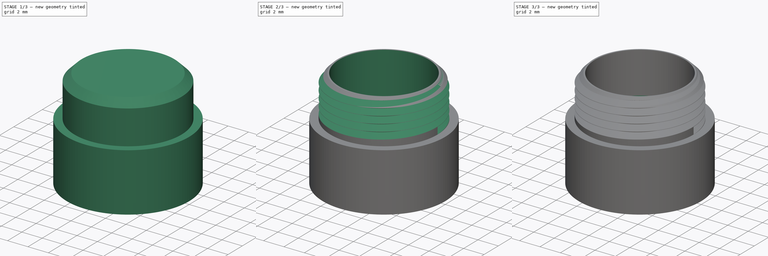
[diagram: build sequence overview — one tinted view per stage of 3, left to right]
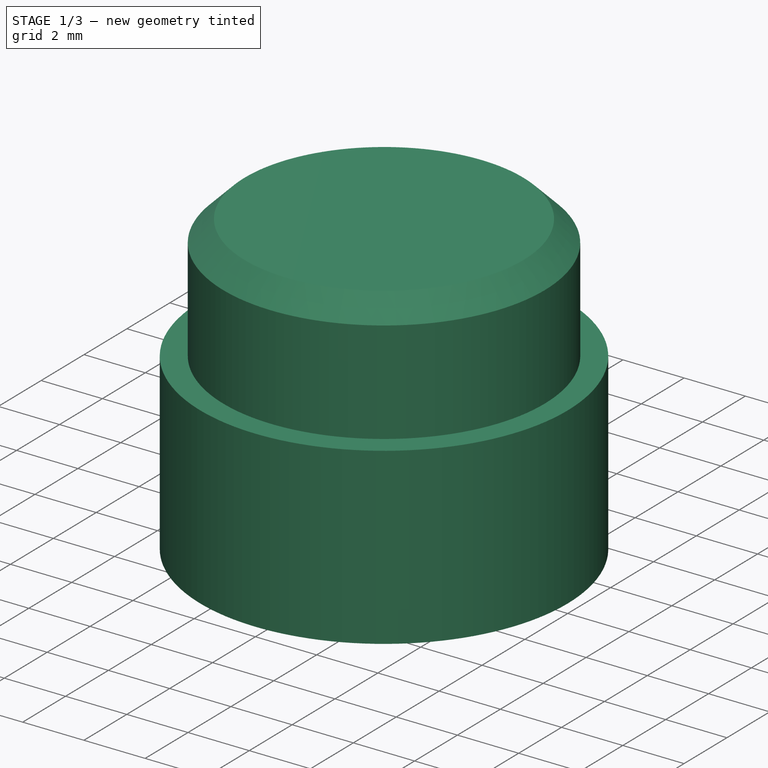
[diagram: stage 1 of 3 — iso view after this stage's code; geometry added in this stage tinted green]
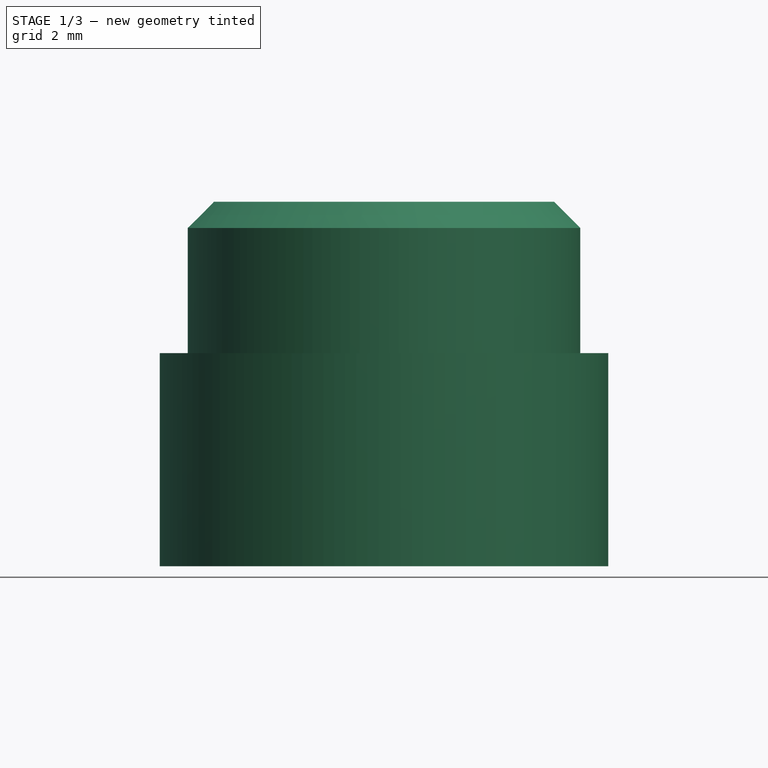
[diagram: stage 1 of 3 — front view after this stage's code; geometry added in this stage tinted green]
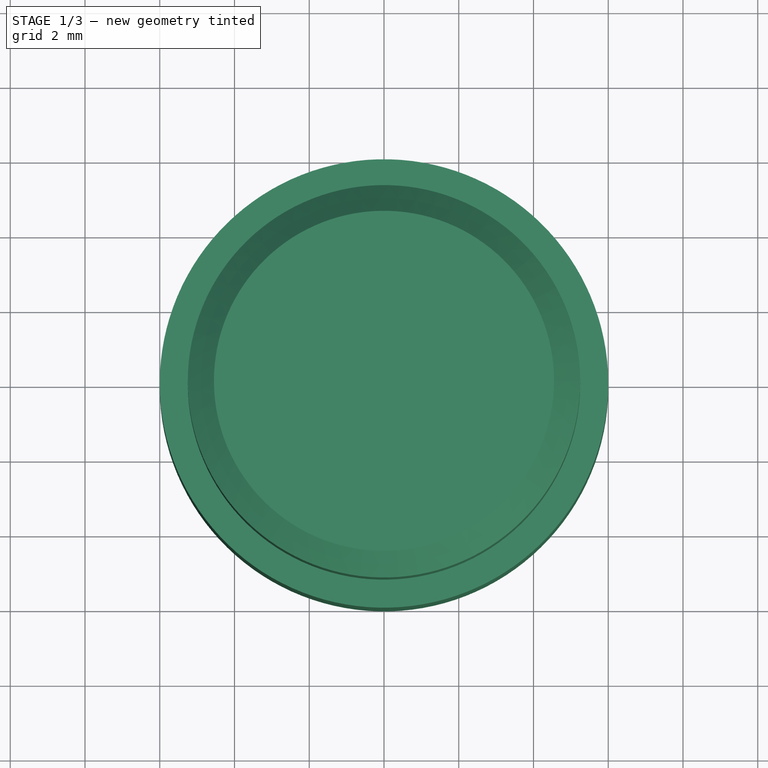
[diagram: stage 1 of 3 — top view after this stage's code; geometry added in this stage tinted green]
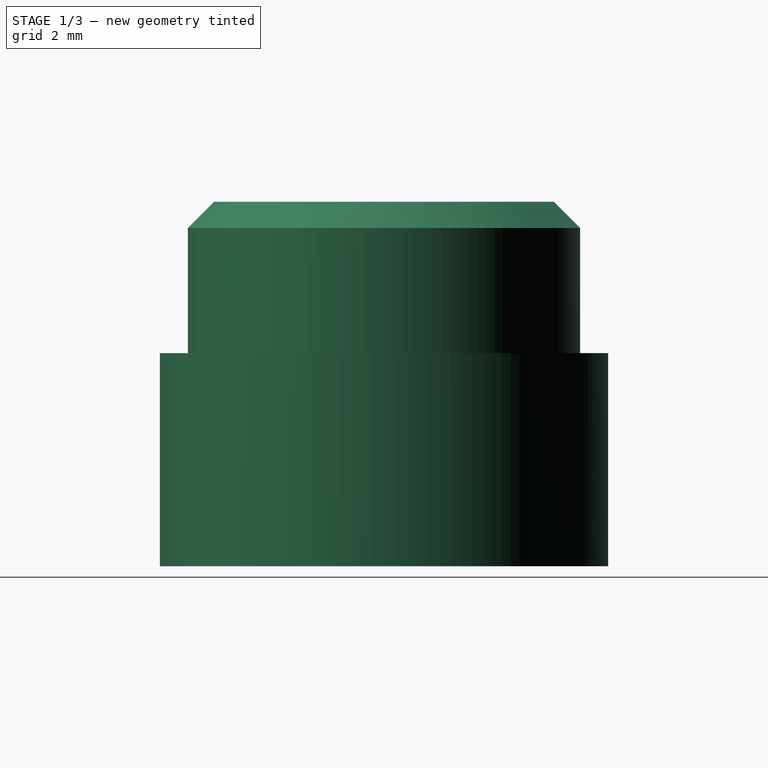
[diagram: stage 1 of 3 — right view after this stage's code; geometry added in this stage tinted green]
FCSTD DOCUMENT  (FreeCAD 0.20R29410 (Git))
Label: sleeve
License: All rights reserved
LicenseURL: http://en.wikipedia.org/wiki/All_rights_reserved
objects: Sketcher::SketchObject×6, PartDesign::Pad×2, PartDesign::Chamfer×2, PartDesign::SubtractiveHelix×2, PartDesign::Pocket×2, Spreadsheet::Sheet×1, PartDesign::Body×1, App::Part×1
note: 23 computed .brp shape members not serialized (recipe doc carries the construction recipe); baked Part::Feature solids carry a one-line shape summary decoded from their .brp

FEATURE [Sketcher::SketchObject] Sketch
  FullyConstrained = true
  MapMode = 5
  Support = -> [XY_Plane001]
  expr: Constraints[1] = Spreadsheet.sleeve_grip_od
  sketch-geometry (1):
    g0: Circle CenterX=0 CenterY=0 CenterZ=0 NormalX=0 NormalY=0 NormalZ=1 AngleXU=0 Radius=6
  constraints (2):
    c: Coincident(g0,g-1)
    c: Diameter(g0) = 12
FEATURE [Spreadsheet::Sheet] Spreadsheet  label="p"
  cells = C1=epsilon; A2=sleeve_height; B2(sleeve_height)=9.75; C2=0; A3=sleeve_grip_id; B3(sleeve_grip_id)==10.4 + C3; C3=-0.1; A4=sleeve_grip_od; B4(sleeve_grip_od)==11.5 + C4; C4=0.5; A5=sleeve_grip_height; B5(sleeve_grip_height)=5.7; C5=0; A6=male_thread_height; B6(male_thread_height)==B2 - B5; C6=0; A7=male_thread_od; B7(male_thread_od)==10 + C7; C7=0.5; A8=male_thread_id; B8(male_thread_id)==8.800000000000001 + C8; C8=0.1; A9=thread_pitch; B9(thread_pitch)=0.7; C9=0
FEATURE [PartDesign::Pad] Pad
  Direction = (0,0,1)
  Length = 5.7
  Length2 = 10
  Profile = -> Sketch
  ReferenceAxis = -> Sketch [N_Axis]
  Type = 0
  expr: Length = <<p>>.sleeve_grip_height
FEATURE [Sketcher::SketchObject] Sketch001
  FullyConstrained = true
  MapMode = 5
  Placement = pos=(0,0,5.7) rot=(0,0,1;0rad)
  Support = -> [Pad]
  expr: Constraints[1] = Spreadsheet.male_thread_od
  sketch-geometry (1):
    g0: Circle CenterX=0 CenterY=0 CenterZ=0 NormalX=0 NormalY=0 NormalZ=1 AngleXU=0 Radius=5.25
  constraints (2):
    c: Coincident(g0,g-1)
    c: Diameter(g0) = 10.5
FEATURE [PartDesign::Pad] Pad001
  BaseFeature = -> Pad
  Direction = (0,0,1)
  Length = 4.05
  Length2 = 10
  Profile = -> Sketch001
  ReferenceAxis = -> Sketch001 [N_Axis]
  Type = 0
  expr: Length = <<p>>.male_thread_height
FEATURE [PartDesign::Chamfer] Chamfer
  Angle = 45
  Base = -> Pad001 [Face5]
  BaseFeature = -> Pad001
  ChamferType = 0
  FlipDirection = false
  Size = 0.7
  Size2 = 1
  SupportTransform = false
  UseAllEdges = false
  expr: Size = <<p>>.thread_pitch
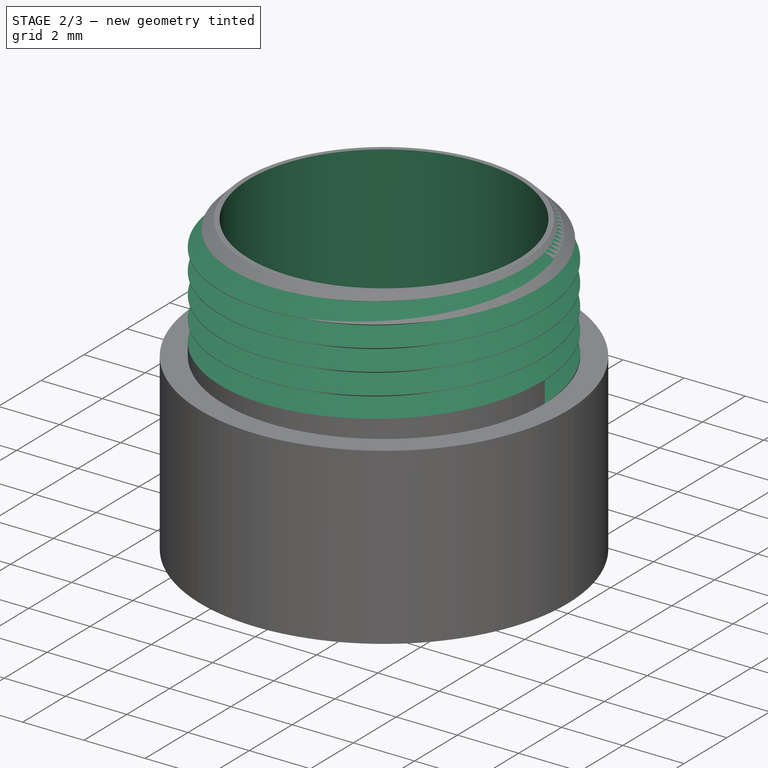
[diagram: stage 2 of 3 — iso view after this stage's code; geometry added in this stage tinted green]
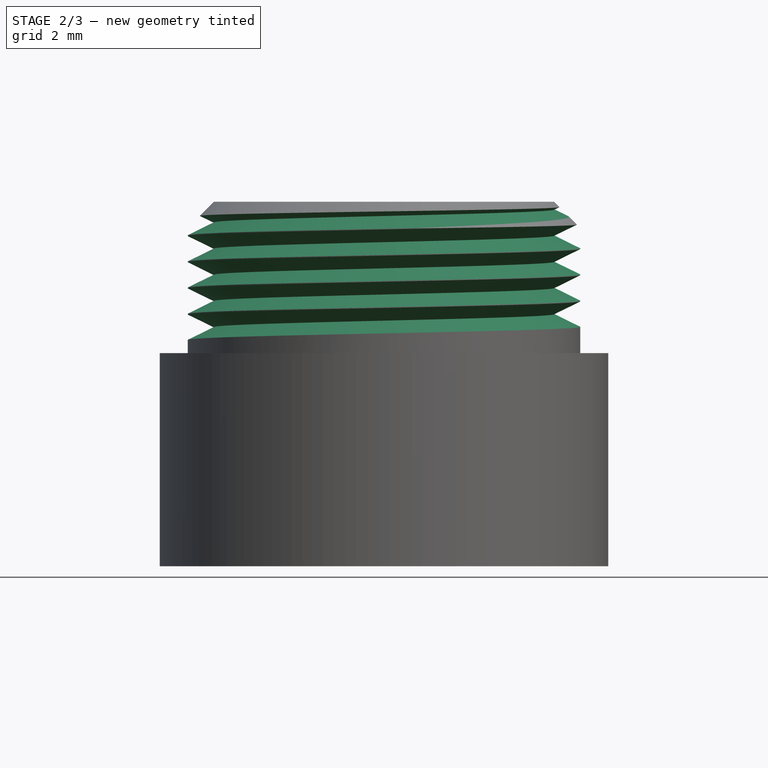
[diagram: stage 2 of 3 — front view after this stage's code; geometry added in this stage tinted green]
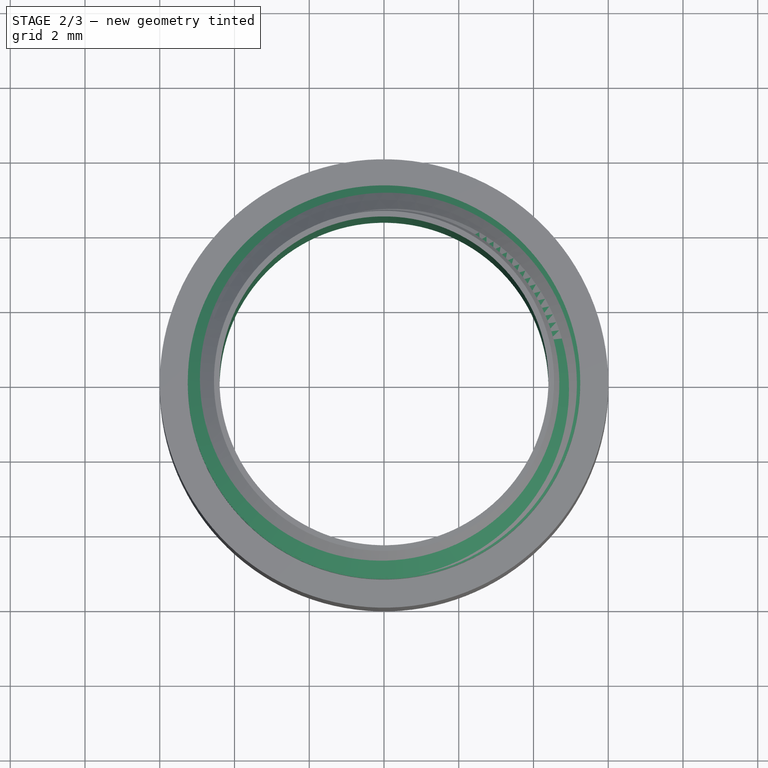
[diagram: stage 2 of 3 — top view after this stage's code; geometry added in this stage tinted green]
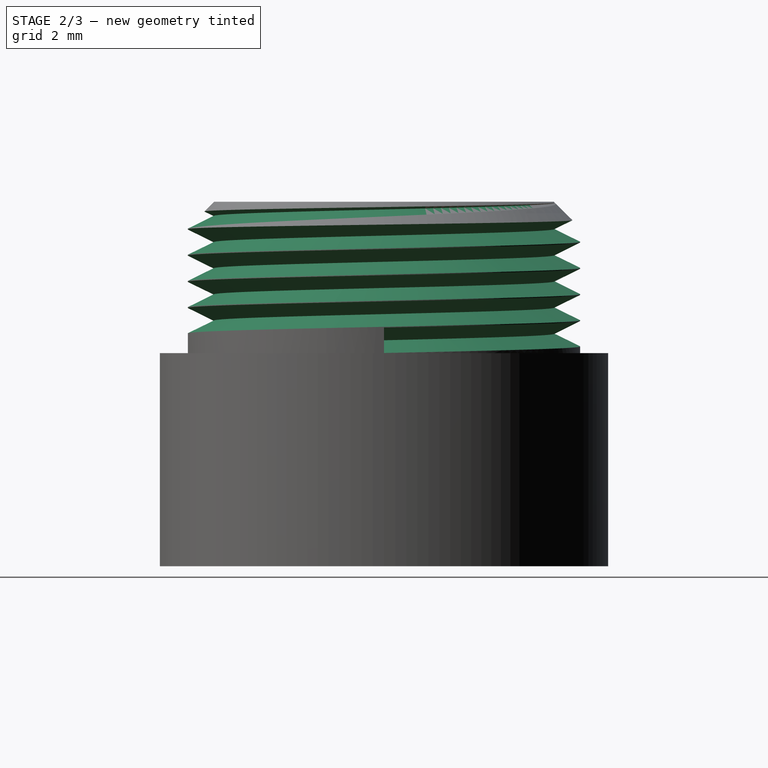
[diagram: stage 2 of 3 — right view after this stage's code; geometry added in this stage tinted green]
FEATURE [Sketcher::SketchObject] Sketch002  label="thread-triangle"
  ExternalGeometry = -> [Chamfer]
  FullyConstrained = true
  MapMode = 5
  Placement = pos=(0,0,0) rot=(1,0,0;1.5708rad)
  Support = -> [XZ_Plane001]
  expr: Constraints[5] = <<p>>.thread_pitch
  expr: Constraints[6] = <<p>>.thread_pitch - 0.01
  sketch-geometry (3):
    g0: LineSegment StartX=5.26 StartY=5.7 StartZ=0 EndX=4.56 EndY=6.045 EndZ=0
    g1: LineSegment StartX=4.56 StartY=6.045 StartZ=0 EndX=5.26 EndY=6.39 EndZ=0
    g2: LineSegment StartX=5.26 StartY=6.39 StartZ=0 EndX=5.26 EndY=5.7 EndZ=0
  constraints (9):
    c: Coincident(g0,g1)
    c: Coincident(g1,g2)
    c: Coincident(g2,g0)
    c: Vertical(g2)
    c: Equal(g1,g0)
    c: DistanceX(g0,g1) = 0.7
    c: DistanceY(g2,g2) = 0.69
    c: DistanceY(g-3,g0) = 0
    c: DistanceX(g-3,g0) = 0.01
FEATURE [PartDesign::SubtractiveHelix] SubtractiveHelix
  Angle = 0
  Axis = (0,-2e-16,1)
  Base = (0,0,0)
  BaseFeature = -> Chamfer
  Growth = 0
  HasBeenEdited = true
  Height = 4.05
  LeftHanded = false
  Mode = 0
  Outside = false
  Pitch = 0.7
  Profile = -> Sketch002
  ReferenceAxis = -> Sketch002 [V_Axis]
  Turns = 5.78571
  expr: Height = <<p>>.male_thread_height
  expr: Pitch = <<p>>.thread_pitch
FEATURE [Sketcher::SketchObject] Sketch003
  FullyConstrained = true
  MapMode = 5
  Placement = pos=(0,0,9.75) rot=(0,0,1;0rad)
  Support = -> [SubtractiveHelix]
  sketch-geometry (1):
    g0: Circle CenterX=0 CenterY=0 CenterZ=0 NormalX=0 NormalY=0 NormalZ=1 AngleXU=0 Radius=4.4
  constraints (2):
    c: Coincident(g0,g-1)
    c: Diameter(g0) = 8.8
FEATURE [PartDesign::Pocket] Pocket
  BaseFeature = -> SubtractiveHelix
  Direction = (0,0,-1)
  Length = 5
  Length2 = 5
  Profile = -> Sketch003
  ReferenceAxis = -> Sketch003 [N_Axis]
  Type = 1
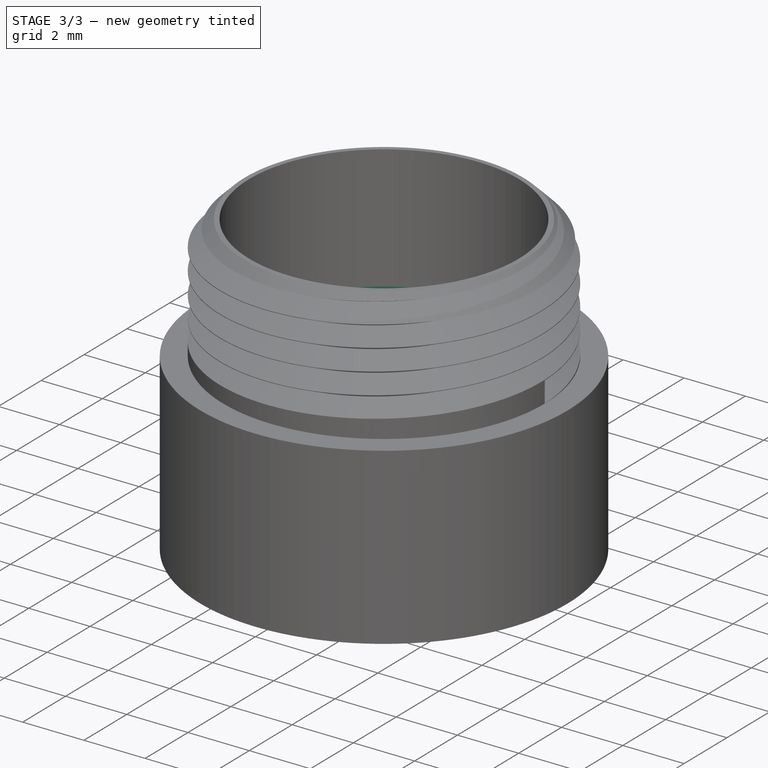
[diagram: stage 3 of 3 — iso view after this stage's code; geometry added in this stage tinted green]
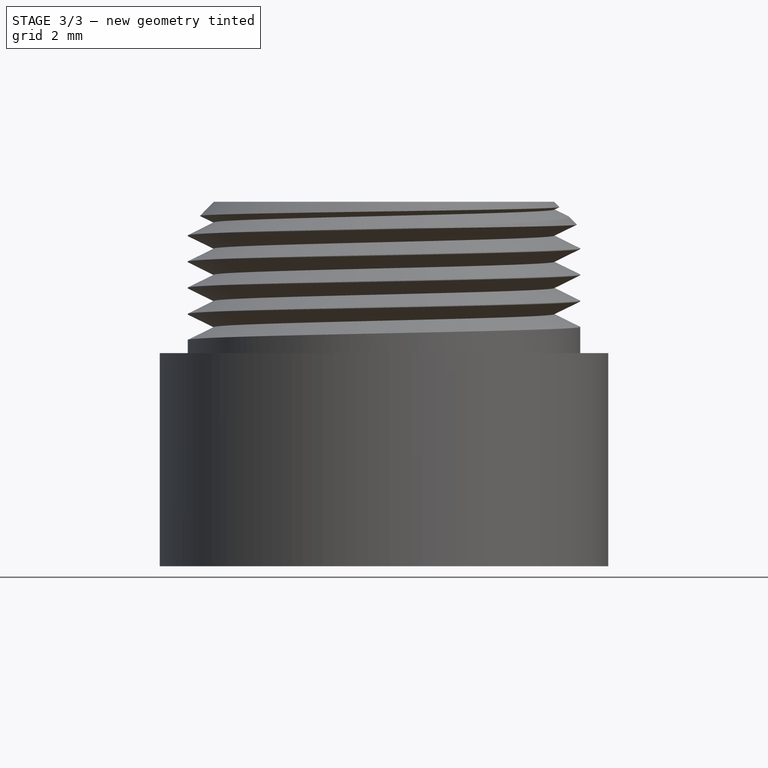
[diagram: stage 3 of 3 — front view after this stage's code; geometry added in this stage tinted green]
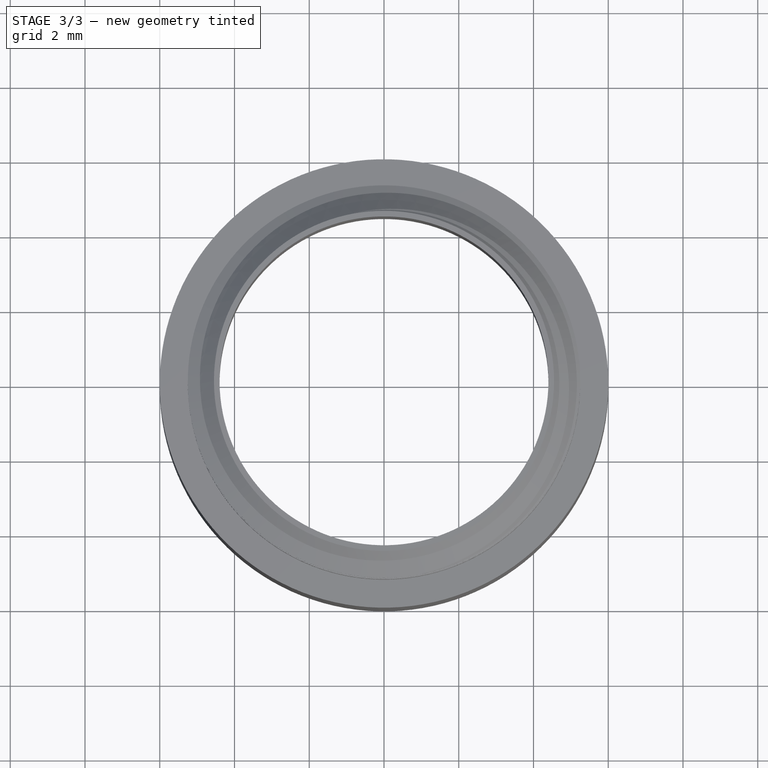
[diagram: stage 3 of 3 — top view after this stage's code; geometry added in this stage tinted green]
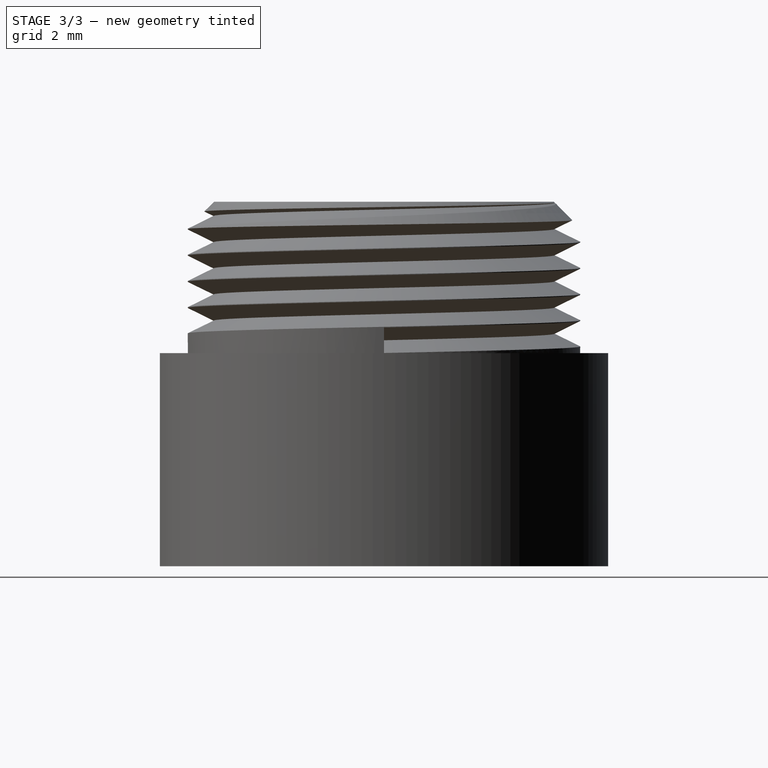
[diagram: stage 3 of 3 — right view after this stage's code; geometry added in this stage tinted green]
FEATURE [Sketcher::SketchObject] Sketch005
  FullyConstrained = true
  MapMode = 5
  Placement = pos=(0,0,5.7) rot=(0,0,1;0rad)
  Support = -> [Pocket]
  expr: Constraints[1] = <<p>>.sleeve_grip_id
  sketch-geometry (1):
    g0: Circle CenterX=0 CenterY=0 CenterZ=0 NormalX=0 NormalY=0 NormalZ=1 AngleXU=0 Radius=5.15
  constraints (2):
    c: Coincident(g0,g-1)
    c: Diameter(g0) = 10.3
FEATURE [PartDesign::Pocket] Pocket001
  BaseFeature = -> Pocket
  Direction = (0,0,-1)
  Length = 5.7
  Length2 = 5
  Profile = -> Sketch005
  ReferenceAxis = -> Sketch005 [N_Axis]
  Type = 0
  expr: Length = <<p>>.sleeve_grip_height
FEATURE [Sketcher::SketchObject] Sketch006
  ExternalGeometry = -> [Pocket001]
  FullyConstrained = true
  MapMode = 5
  Placement = pos=(0,0,0) rot=(1,0,0;1.5708rad)
  Support = -> [XZ_Plane]
  expr: Constraints[4] = <<p>>.thread_pitch
  expr: Constraints[5] = <<p>>.thread_pitch - 0.01
  sketch-geometry (3):
    g0: LineSegment StartX=5.15 StartY=0.69 StartZ=0 EndX=5.15 EndY=0 EndZ=0
    g1: LineSegment StartX=5.15 StartY=0 StartZ=0 EndX=5.85 EndY=0.345 EndZ=0
    g2: LineSegment StartX=5.85 StartY=0.345 StartZ=0 EndX=5.15 EndY=0.69 EndZ=0
  constraints (8):
    c: Vertical(g0)
    c: Coincident(g0,g1)
    c: Coincident(g1,g2)
    c: Coincident(g2,g0)
    c: DistanceX(g0,g1) = 0.7
    c: DistanceY(g0,g0) = 0.69
    c: Equal(g2,g1)
    c: Coincident(g0,g-3)
FEATURE [PartDesign::Chamfer] Chamfer001
  Angle = 45
  Base = -> Pocket001 [Edge22]
  BaseFeature = -> Pocket001
  ChamferType = 0
  FlipDirection = false
  Size = 0.7
  Size2 = 1
  SupportTransform = false
  UseAllEdges = false
  expr: Size = <<p>>.thread_pitch
FEATURE [PartDesign::SubtractiveHelix] SubtractiveHelix001
  Angle = 0
  Axis = (0,-2e-16,1)
  Base = (0,0,0)
  BaseFeature = -> Chamfer001
  Growth = 0
  HasBeenEdited = true
  Height = 4.7
  LeftHanded = false
  Mode = 0
  Outside = false
  Pitch = 0.7
  Profile = -> Sketch006
  ReferenceAxis = -> Sketch006 [V_Axis]
  Turns = 6.71429
  expr: Height = <<p>>.sleeve_grip_height - 1
  expr: Pitch = <<p>>.thread_pitch
FEATURE [PartDesign::Body] Body
  Group = -> [Sketch,Pad,Sketch001,Pad001,Chamfer,Sketch002,SubtractiveHelix,Sketch003,Pocket,Sketch005,Pocket001,Sketch006,Chamfer001,SubtractiveHelix001]
  Origin = -> Origin001
  Tip = -> SubtractiveHelix001
FEATURE [App::Part] Part
  Group = -> [Body]
  Origin = -> Origin
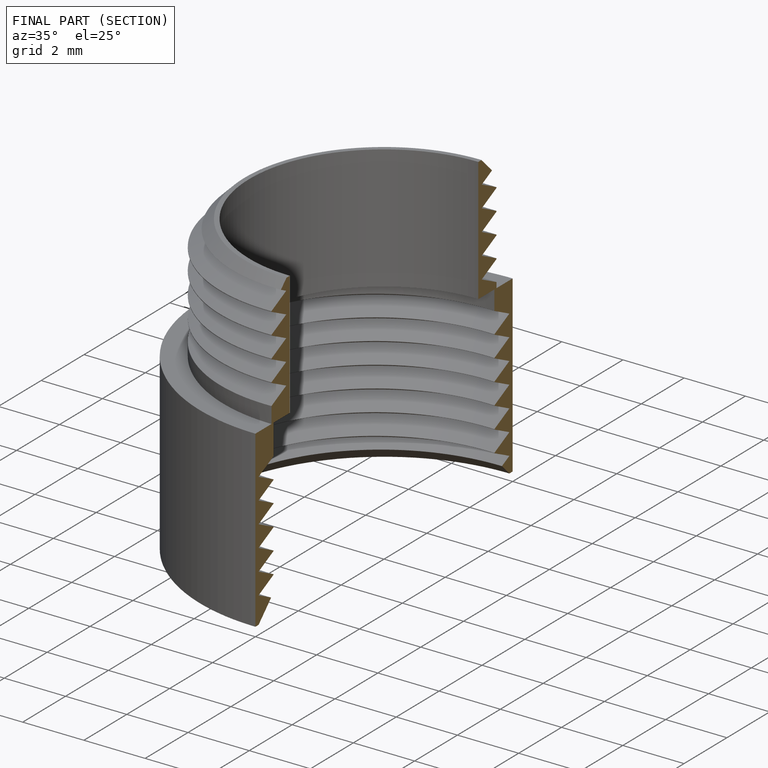
[diagram: finished part — half-section view (interior)]
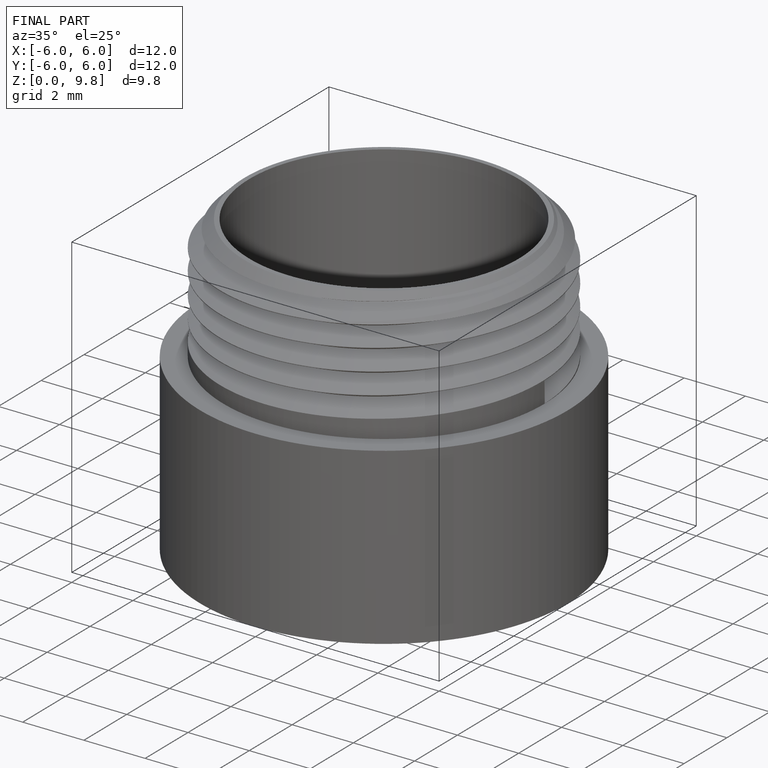
[diagram: finished part — iso view with bounding-box wireframe]
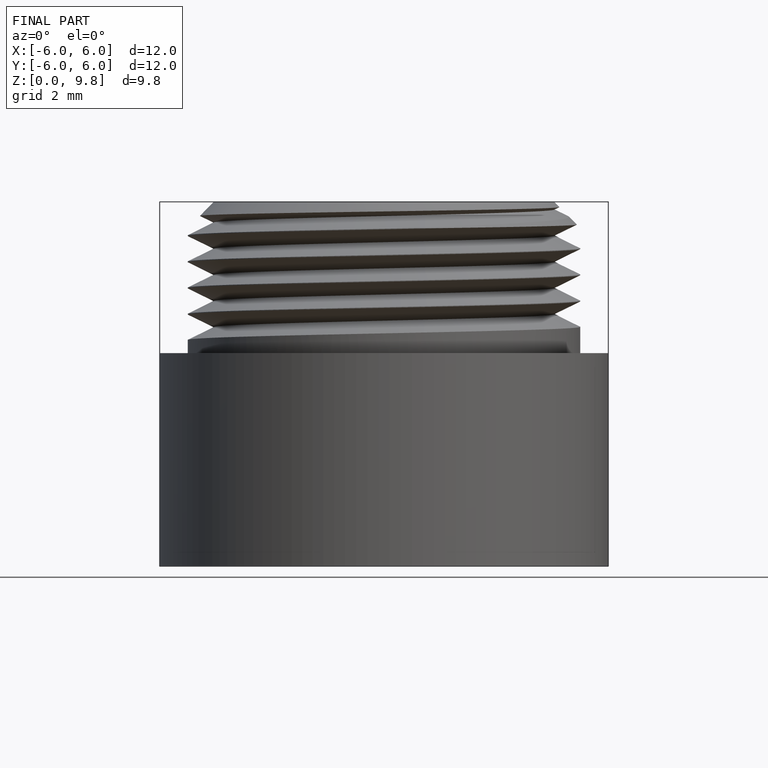
[diagram: finished part — front view with bounding-box wireframe]
